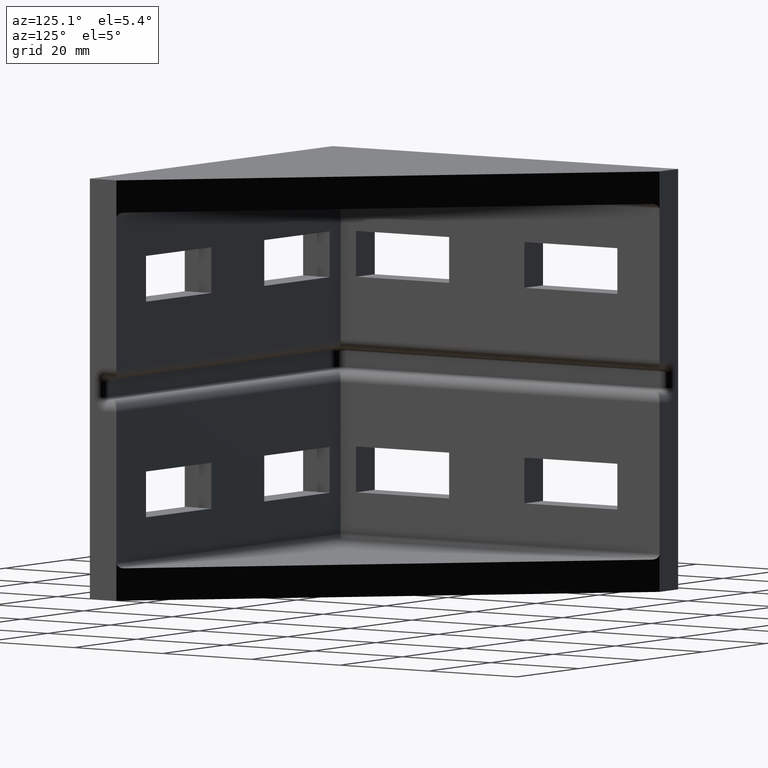
[diagram: clean part render]
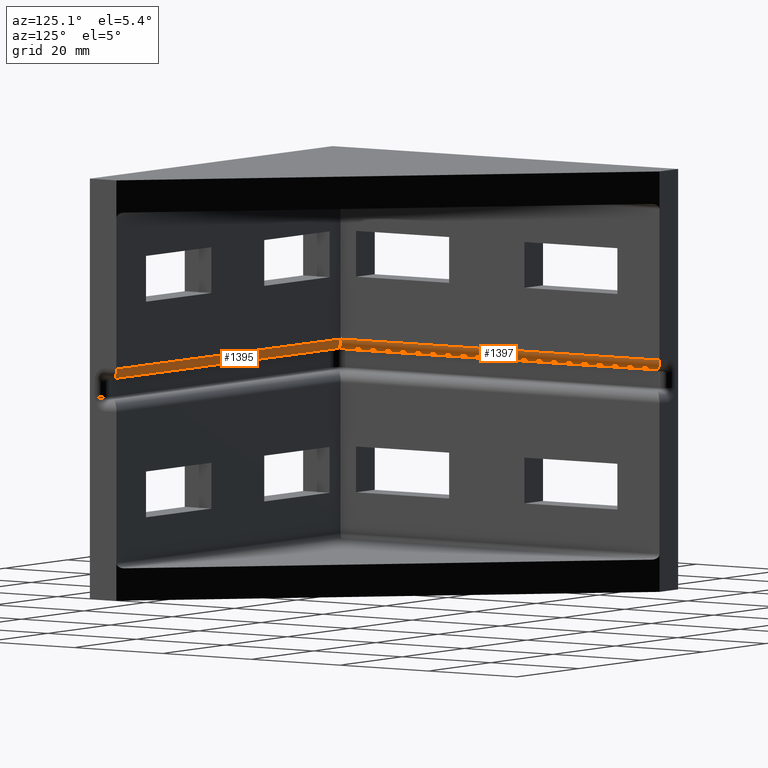
[diagram: same view with one multi-face feature highlighted, each face labeled with its STEP entity id]
A machine part, auxiliary view. The highlighted faces form ONE feature: a constant-radius fillet chain: 2 tangent blend faces with common blend radius 2 mm. The faces share edges in the B-rep.
Their STEP definitions:
[1] entity #1397 (Cylinder):
#32=CYLINDRICAL_SURFACE('',#1499,2.);
#48=ELLIPSE('',#1496,2.82842712474658,2.00000000000029);
#49=ELLIPSE('',#1500,2.82842712474629,2.00000000000002);
#132=FACE_OUTER_BOUND('',#223,.T.);
#223=EDGE_LOOP('',(#1230,#1231,#1232,#1233));
#239=LINE('',#1917,#398);
#263=LINE('',#1968,#422);
#398=VECTOR('',#1532,72.);
#422=VECTOR('',#1564,72.);
#582=VERTEX_POINT('',#1914);
#583=VERTEX_POINT('',#1916);
#594=VERTEX_POINT('',#1940);
#606=VERTEX_POINT('',#1965);
#704=EDGE_CURVE('',#582,#583,#239,.T.);
#729=EDGE_CURVE('',#594,#606,#263,.T.);
#883=EDGE_CURVE('',#594,#583,#48,.T.);
#885=EDGE_CURVE('',#606,#582,#49,.T.);
#1230=ORIENTED_EDGE('',*,*,#883,.T.);
#1231=ORIENTED_EDGE('',*,*,#704,.F.);
#1232=ORIENTED_EDGE('',*,*,#885,.F.);
#1233=ORIENTED_EDGE('',*,*,#729,.F.);
#1397=ADVANCED_FACE('',(#132),#32,.T.);
#1496=AXIS2_PLACEMENT_3D('',#2272,#1851,#1852);
#1499=AXIS2_PLACEMENT_3D('',#2275,#1857,#1858);
#1500=AXIS2_PLACEMENT_3D('',#2276,#1859,#1860);
#1532=DIRECTION('',(1.56606980470128E-16,-1.,0.));
#1564=DIRECTION('',(-1.56606980470128E-16,1.,0.));
#1851=DIRECTION('center_axis',(-0.707106781186548,0.707106781186547,9.23260118032703E-16));
#1852=DIRECTION('ref_axis',(0.707106781186547,0.707106781186548,-1.7562304966804E-13));
#1857=DIRECTION('center_axis',(-1.56606980470128E-16,1.,0.));
#1858=DIRECTION('ref_axis',(-1.,-1.56606980470128E-16,0.));
#1859=DIRECTION('center_axis',(-0.707106781186547,0.707106781186548,-1.53876686338784E-15));
#1860=DIRECTION('ref_axis',(0.707106781186548,0.707106781186547,-4.09187708006231E-14));
#1914=CARTESIAN_POINT('',(4.,76.,41.));
#1916=CARTESIAN_POINT('',(4.00000000000001,4.,41.));
#1917=CARTESIAN_POINT('',(4.00000000000001,6.,41.));
#1940=CARTESIAN_POINT('',(6.00000000000001,6.,43.));
#1965=CARTESIAN_POINT('',(6.,78.,43.));
#1968=CARTESIAN_POINT('',(6.,78.,43.));
#2272=CARTESIAN_POINT('Origin',(3.99999999999973,3.99999999999972,43.0000000000003));
#2275=CARTESIAN_POINT('Origin',(4.,78.,43.));
#2276=CARTESIAN_POINT('Origin',(3.99999999999992,75.9999999999999,43.));
[2] entity #1395 (Cylinder):
#30=CYLINDRICAL_SURFACE('',#1495,2.);
#47=ELLIPSE('',#1491,2.82842712474639,2.00000000000016);
#48=ELLIPSE('',#1496,2.82842712474658,2.00000000000029);
#130=FACE_OUTER_BOUND('',#221,.T.);
#221=EDGE_LOOP('',(#1222,#1223,#1224,#1225));
#240=LINE('',#1919,#399);
#252=LINE('',#1946,#411);
#399=VECTOR('',#1533,72.);
#411=VECTOR('',#1551,72.);
#583=VERTEX_POINT('',#1916);
#584=VERTEX_POINT('',#1918);
#594=VERTEX_POINT('',#1940);
#596=VERTEX_POINT('',#1944);
#705=EDGE_CURVE('',#583,#584,#240,.T.);
#718=EDGE_CURVE('',#596,#594,#252,.T.);
#880=EDGE_CURVE('',#596,#584,#47,.T.);
#883=EDGE_CURVE('',#594,#583,#48,.T.);
#1222=ORIENTED_EDGE('',*,*,#880,.T.);
#1223=ORIENTED_EDGE('',*,*,#705,.F.);
#1224=ORIENTED_EDGE('',*,*,#883,.F.);
#1225=ORIENTED_EDGE('',*,*,#718,.F.);
#1395=ADVANCED_FACE('',(#130),#30,.T.);
#1491=AXIS2_PLACEMENT_3D('',#2267,#1841,#1842);
#1495=AXIS2_PLACEMENT_3D('',#2271,#1849,#1850);
#1496=AXIS2_PLACEMENT_3D('',#2272,#1851,#1852);
#1533=DIRECTION('',(1.,0.,0.));
#1551=DIRECTION('',(-1.,0.,0.));
#1841=DIRECTION('center_axis',(-0.707106781186548,0.707106781186547,7.18091202914326E-16));
#1842=DIRECTION('ref_axis',(0.707106781186548,0.707106781186548,-1.07687537613088E-13));
#1849=DIRECTION('center_axis',(1.,0.,0.));
#1850=DIRECTION('ref_axis',(0.,0.,-1.));
#1851=DIRECTION('center_axis',(-0.707106781186548,0.707106781186547,9.23260118032703E-16));
#1852=DIRECTION('ref_axis',(0.707106781186547,0.707106781186548,-1.7562304966804E-13));
#1916=CARTESIAN_POINT('',(4.00000000000001,4.,41.));
#1918=CARTESIAN_POINT('',(76.,4.,41.));
#1919=CARTESIAN_POINT('',(-0.5,4.,41.));
#1940=CARTESIAN_POINT('',(6.00000000000001,6.,43.));
#1944=CARTESIAN_POINT('',(78.,6.,43.));
#1946=CARTESIAN_POINT('',(6.00000000000001,6.,43.));
#2267=CARTESIAN_POINT('Origin',(75.9999999999999,3.99999999999986,43.0000000000002));
#2271=CARTESIAN_POINT('Origin',(-0.5,4.,43.));
#2272=CARTESIAN_POINT('Origin',(3.99999999999973,3.99999999999972,43.0000000000003));